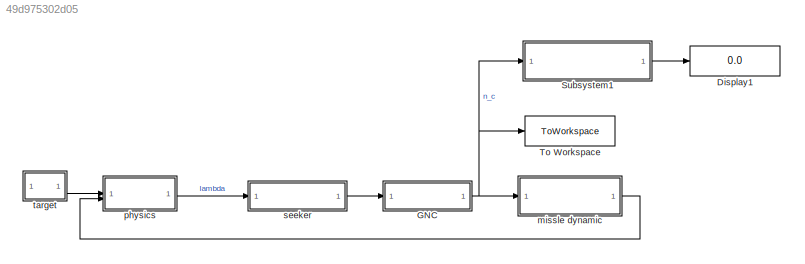
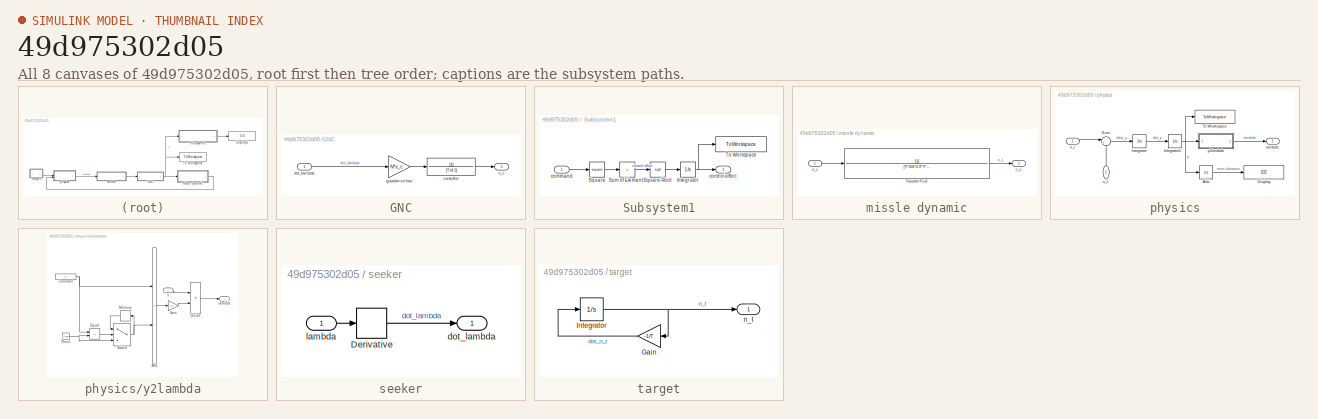
[diagram: thumbnail index - all 8 canvases of the model, root first then tree order]
MODEL slx_49d975302d05
KIND model
CONFIG AbsTol = auto
CONFIG EnableMultiTasking = off
CONFIG FixedStep = 0.002
CONFIG InitFcn = init;
CONFIG MaxStep = auto
CONFIG MinStep = auto
CONFIG RelTol = 1e-3
CONFIG SampleTimeConstraint = Unconstrained
CONFIG SolverName = ode4
CONFIG StartTime = 0.0
CONFIG StopTime = 15
BLOCK [Display] Display1
  Decimation = 1
BLOCK [SubSystem] GNC
BLOCK [TransferFcn] GNC/controller
  Denominator = [T/4 1]
BLOCK [Inport] GNC/dot_lambda
BLOCK [Gain] GNC/guiadamce law
  Gain = N*v_c
BLOCK [Outport] GNC/n_c
BLOCK [SubSystem] Subsystem1
BLOCK [Integrator] Subsystem1/Integrator
BLOCK [Math] Subsystem1/Square
  Operator = square
BLOCK [Sqrt] Subsystem1/Square Root
BLOCK [Sum] Subsystem1/Sum of Elements
  IconShape = rectangular
  Inputs = +
BLOCK [ToWorkspace] Subsystem1/To Workspace
  FixptAsFi = on
  MaxDataPoints = inf
  SampleTime = -1
  SaveFormat = Timeseries
  VariableName = control_effort
BLOCK [Inport] Subsystem1/command
BLOCK [Outport] Subsystem1/control effort
BLOCK [ToWorkspace] To Workspace
  FixptAsFi = on
  MaxDataPoints = inf
  SampleTime = -1
  SaveFormat = Timeseries
  VariableName = GNC_command
BLOCK [SubSystem] missle dynamic
BLOCK [TransferFcn] missle dynamic/Transfer Fcn1
  Denominator = [T^3/4^3 3*T^2/4^2 3*T/4 1]
BLOCK [Outport] missle dynamic/n_L
BLOCK [Inport] missle dynamic/n_c
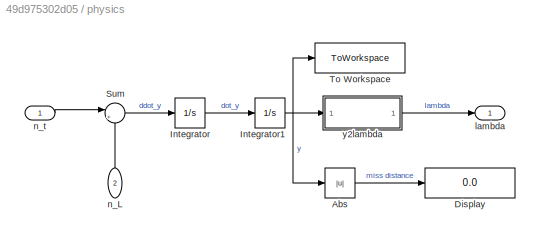
BLOCK [SubSystem] physics
BLOCK [Abs] physics/Abs
  SaturateOnIntegerOverflow = off
BLOCK [Display] physics/Display
  Decimation = 1
BLOCK [Integrator] physics/Integrator
BLOCK [Integrator] physics/Integrator1
BLOCK [Sum] physics/Sum
  Inputs = |+-
BLOCK [ToWorkspace] physics/To Workspace
  FixptAsFi = on
  MaxDataPoints = inf
  SampleTime = -1
  SaveFormat = Timeseries
  VariableName = y
BLOCK [Outport] physics/lambda
BLOCK [Inport] physics/n_L
  NameLocation = right
  Port = 2
BLOCK [Inport] physics/n_t
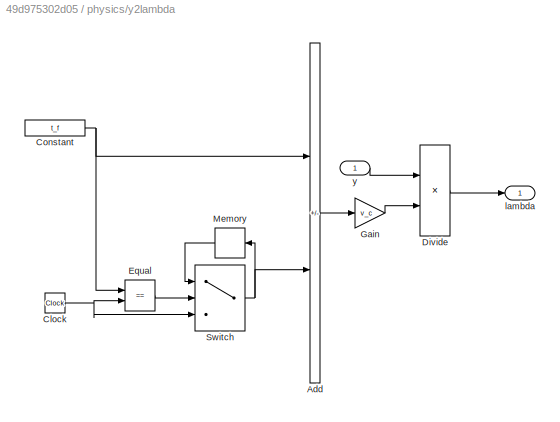
BLOCK [SubSystem] physics/y2lambda
BLOCK [Sum] physics/y2lambda/Add
  IconShape = rectangular
  Inputs = +-
BLOCK [Clock] physics/y2lambda/Clock
BLOCK [Constant] physics/y2lambda/Constant
  Value = t_f
BLOCK [Product] physics/y2lambda/Divide
  Inputs = */
BLOCK [RelationalOperator] physics/y2lambda/Equal
  InputSameDT = off
  Operator = ==
  OutDataTypeStr = boolean
  RndMeth = Simplest
BLOCK [Gain] physics/y2lambda/Gain
  Gain = v_c
BLOCK [Memory] physics/y2lambda/Memory
  NameLocation = top
BLOCK [Switch] physics/y2lambda/Switch
  Criteria = u2 > Threshold
  InputSameDT = off
  SaturateOnIntegerOverflow = off
BLOCK [Outport] physics/y2lambda/lambda
BLOCK [Inport] physics/y2lambda/y
BLOCK [SubSystem] seeker
BLOCK [Derivative] seeker/Derivative
BLOCK [Outport] seeker/dot_lambda
BLOCK [Inport] seeker/lambda
BLOCK [SubSystem] target
BLOCK [Gain] target/Gain
  Gain = -1/T
  NameLocation = top
BLOCK [Integrator] target/Integrator
  InitialCondition = 3*g
BLOCK [Outport] target/n_t
LINE GNC/controller:1 -> GNC/n_c:1
LINE GNC/dot_lambda:1 -> GNC/guiadamce law:1
LINE GNC/guiadamce law:1 -> GNC/controller:1
NET GNC:1 -> Subsystem1:1, To Workspace:1, missle dynamic:1
NET Subsystem1/Integrator:1 -> Subsystem1/To Workspace:1, Subsystem1/control effort:1
LINE Subsystem1/Square Root:1 -> Subsystem1/Integrator:1
LINE Subsystem1/Square:1 -> Subsystem1/Sum of Elements:1
LINE Subsystem1/Sum of Elements:1 -> Subsystem1/Square Root:1
LINE Subsystem1/command:1 -> Subsystem1/Square:1
LINE Subsystem1:1 -> Display1:1
LINE missle dynamic/Transfer Fcn1:1 -> missle dynamic/n_L:1
LINE missle dynamic/n_c:1 -> missle dynamic/Transfer Fcn1:1
LINE missle dynamic:1 -> physics:2
LINE physics/Abs:1 -> physics/Display:1
NET physics/Integrator1:1 -> physics/Abs:1, physics/To Workspace:1, physics/y2lambda:1
LINE physics/Integrator:1 -> physics/Integrator1:1
LINE physics/Sum:1 -> physics/Integrator:1
LINE physics/n_L:1 -> physics/Sum:2
LINE physics/n_t:1 -> physics/Sum:1
LINE physics/y2lambda/Add:1 -> physics/y2lambda/Gain:1
NET physics/y2lambda/Clock:1 -> physics/y2lambda/Equal:2, physics/y2lambda/Switch:3
NET physics/y2lambda/Constant:1 -> physics/y2lambda/Add:1, physics/y2lambda/Equal:1
LINE physics/y2lambda/Divide:1 -> physics/y2lambda/lambda:1
LINE physics/y2lambda/Equal:1 -> physics/y2lambda/Switch:2
LINE physics/y2lambda/Gain:1 -> physics/y2lambda/Divide:2
LINE physics/y2lambda/Memory:1 -> physics/y2lambda/Switch:1
NET physics/y2lambda/Switch:1 -> physics/y2lambda/Add:2, physics/y2lambda/Memory:1
LINE physics/y2lambda/y:1 -> physics/y2lambda/Divide:1
LINE physics/y2lambda:1 -> physics/lambda:1
LINE physics:1 -> seeker:1
LINE seeker/Derivative:1 -> seeker/dot_lambda:1
LINE seeker/lambda:1 -> seeker/Derivative:1
LINE seeker:1 -> GNC:1
LINE target/Gain:1 -> target/Integrator:1
NET target/Integrator:1 -> target/Gain:1, target/n_t:1
LINE target:1 -> physics:1
note: NET lines group one-source signal fan-out (src -> all destinations, sorted); 1:1 wires keep LINE
